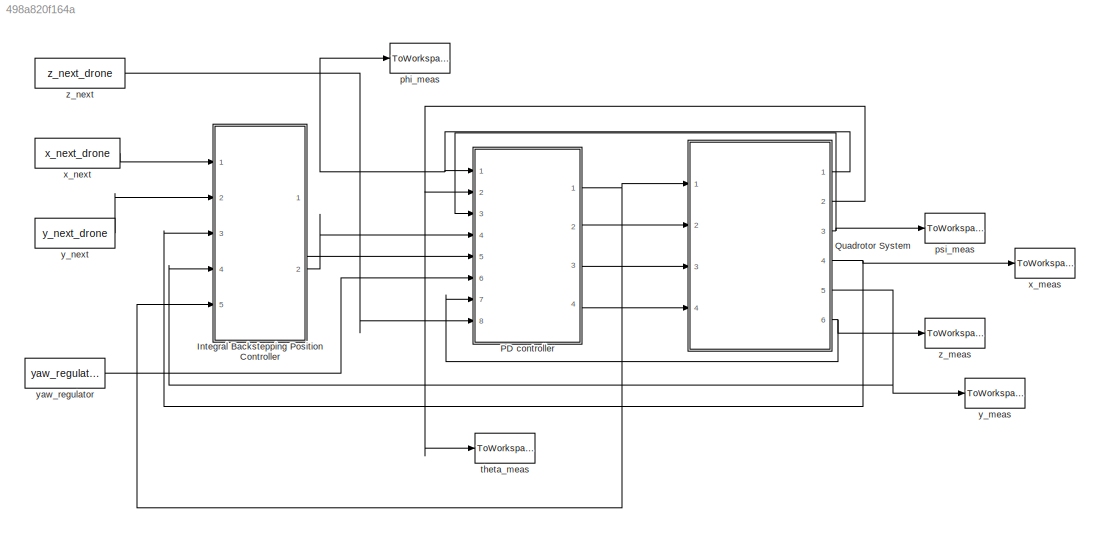
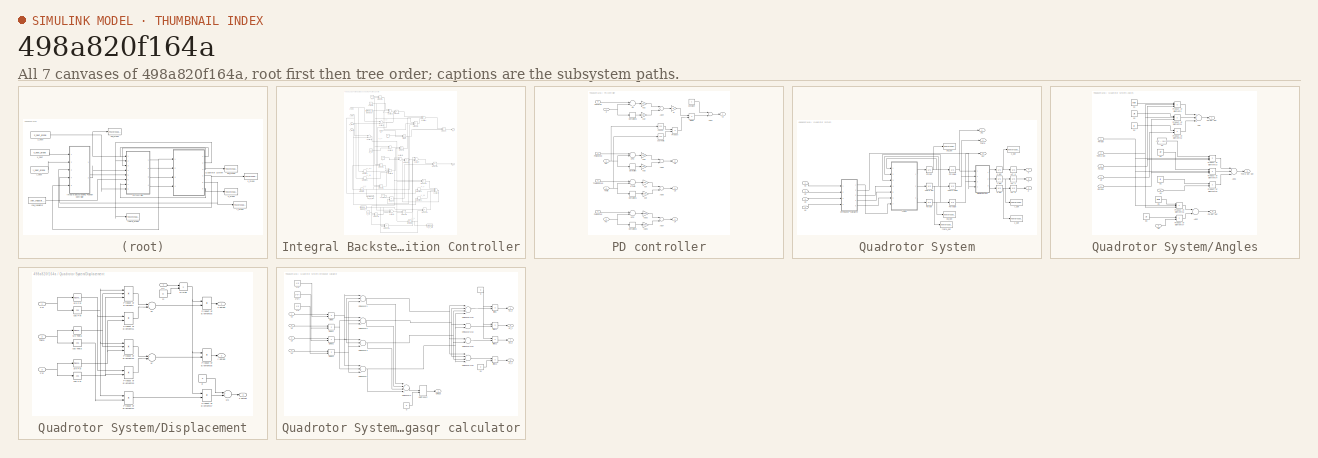
[diagram: thumbnail index - all 7 canvases of the model, root first then tree order]
MODEL slx_498a820f164a
KIND model
CONFIG AbsTol = auto
CONFIG FixedStep = auto
CONFIG MaxStep = auto
CONFIG MinStep = auto
CONFIG RelTol = 1e-3
CONFIG SampleTimeConstraint = Unconstrained
CONFIG Solver = VariableStepAuto
CONFIG SolverMode = Auto
CONFIG SolverName = VariableStepAuto
CONFIG StartTime = start_simulation_drone
CONFIG StopTime = end_simulation_drone
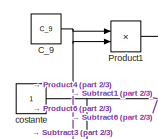
[diagram: Integral Backstepping Position Controller - part 1/3, top left region]
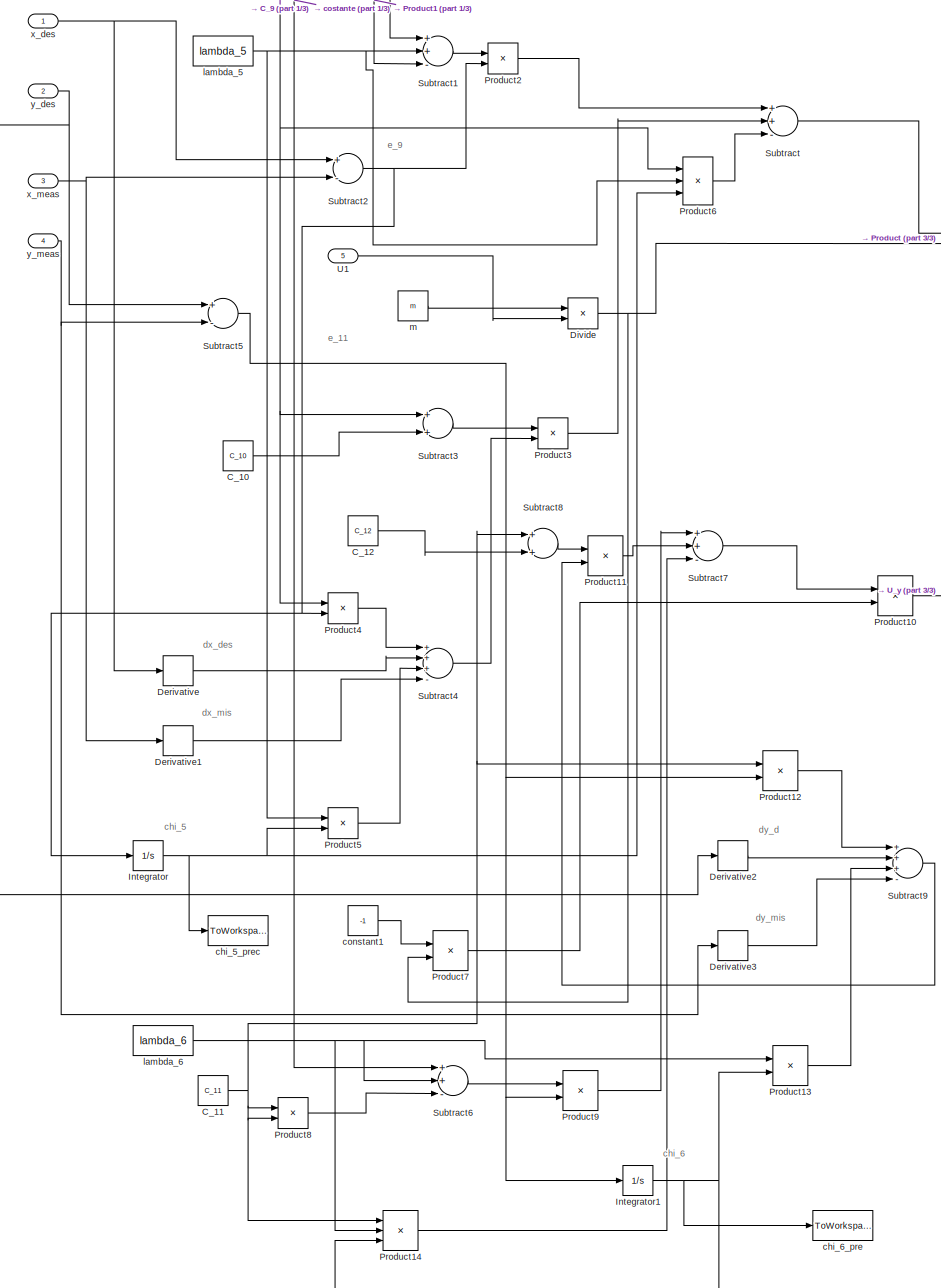
[diagram: Integral Backstepping Position Controller - part 2/3, most of the canvas]
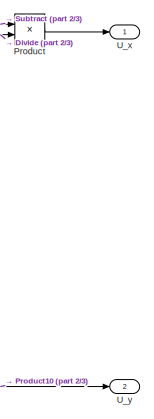
[diagram: Integral Backstepping Position Controller - part 3/3, middle right region]
BLOCK [SubSystem] Integral Backstepping Position Controller
  Ports = [5, 2]
  RequestExecContextInheritance = off
  Variant = off
BLOCK [Constant] Integral Backstepping Position Controller/C_10
  Value = C_10
BLOCK [Constant] Integral Backstepping Position Controller/C_11
  Value = C_11
BLOCK [Constant] Integral Backstepping Position Controller/C_12
  Value = C_12
BLOCK [Constant] Integral Backstepping Position Controller/C_9
  Value = C_9
BLOCK [Derivative] Integral Backstepping Position Controller/Derivative
BLOCK [Derivative] Integral Backstepping Position Controller/Derivative1
BLOCK [Derivative] Integral Backstepping Position Controller/Derivative2
BLOCK [Derivative] Integral Backstepping Position Controller/Derivative3
BLOCK [Product] Integral Backstepping Position Controller/Divide
  InputSameDT = off
  Inputs = */
  OutDataTypeStr = Inherit: Inherit via internal rule
  Ports = [2, 1]
  RndMeth = Floor
  SaturateOnIntegerOverflow = off
BLOCK [Integrator] Integral Backstepping Position Controller/Integrator
  InitialCondition = chi_5_pre
  Ports = [1, 1]
BLOCK [Integrator] Integral Backstepping Position Controller/Integrator1
  InitialCondition = chi_6_pre
  Ports = [1, 1]
BLOCK [Product] Integral Backstepping Position Controller/Product
  InputSameDT = off
  OutDataTypeStr = Inherit: Inherit via internal rule
  Ports = [2, 1]
  RndMeth = Floor
  SaturateOnIntegerOverflow = off
BLOCK [Product] Integral Backstepping Position Controller/Product1
  InputSameDT = off
  OutDataTypeStr = Inherit: Inherit via internal rule
  Ports = [2, 1]
  RndMeth = Floor
  SaturateOnIntegerOverflow = off
BLOCK [Product] Integral Backstepping Position Controller/Product10
  InputSameDT = off
  OutDataTypeStr = Inherit: Inherit via internal rule
  Ports = [2, 1]
  RndMeth = Floor
  SaturateOnIntegerOverflow = off
BLOCK [Product] Integral Backstepping Position Controller/Product11
  InputSameDT = off
  OutDataTypeStr = Inherit: Inherit via internal rule
  Ports = [2, 1]
  RndMeth = Floor
  SaturateOnIntegerOverflow = off
BLOCK [Product] Integral Backstepping Position Controller/Product12
  InputSameDT = off
  OutDataTypeStr = Inherit: Inherit via internal rule
  Ports = [2, 1]
  RndMeth = Floor
  SaturateOnIntegerOverflow = off
BLOCK [Product] Integral Backstepping Position Controller/Product13
  InputSameDT = off
  OutDataTypeStr = Inherit: Inherit via internal rule
  Ports = [2, 1]
  RndMeth = Floor
  SaturateOnIntegerOverflow = off
BLOCK [Product] Integral Backstepping Position Controller/Product14
  InputSameDT = off
  Inputs = 3
  OutDataTypeStr = Inherit: Inherit via internal rule
  Ports = [3, 1]
  RndMeth = Floor
  SaturateOnIntegerOverflow = off
BLOCK [Product] Integral Backstepping Position Controller/Product2
  InputSameDT = off
  OutDataTypeStr = Inherit: Inherit via internal rule
  Ports = [2, 1]
  RndMeth = Floor
  SaturateOnIntegerOverflow = off
BLOCK [Product] Integral Backstepping Position Controller/Product3
  InputSameDT = off
  OutDataTypeStr = Inherit: Inherit via internal rule
  Ports = [2, 1]
  RndMeth = Floor
  SaturateOnIntegerOverflow = off
BLOCK [Product] Integral Backstepping Position Controller/Product4
  InputSameDT = off
  OutDataTypeStr = Inherit: Inherit via internal rule
  Ports = [2, 1]
  RndMeth = Floor
  SaturateOnIntegerOverflow = off
BLOCK [Product] Integral Backstepping Position Controller/Product5
  InputSameDT = off
  OutDataTypeStr = Inherit: Inherit via internal rule
  Ports = [2, 1]
  RndMeth = Floor
  SaturateOnIntegerOverflow = off
BLOCK [Product] Integral Backstepping Position Controller/Product6
  InputSameDT = off
  Inputs = 3
  OutDataTypeStr = Inherit: Inherit via internal rule
  Ports = [3, 1]
  RndMeth = Floor
  SaturateOnIntegerOverflow = off
BLOCK [Product] Integral Backstepping Position Controller/Product7
  InputSameDT = off
  OutDataTypeStr = Inherit: Inherit via internal rule
  Ports = [2, 1]
  RndMeth = Floor
  SaturateOnIntegerOverflow = off
BLOCK [Product] Integral Backstepping Position Controller/Product8
  InputSameDT = off
  OutDataTypeStr = Inherit: Inherit via internal rule
  Ports = [2, 1]
  RndMeth = Floor
  SaturateOnIntegerOverflow = off
BLOCK [Product] Integral Backstepping Position Controller/Product9
  InputSameDT = off
  OutDataTypeStr = Inherit: Inherit via internal rule
  Ports = [2, 1]
  RndMeth = Floor
  SaturateOnIntegerOverflow = off
BLOCK [Sum] Integral Backstepping Position Controller/Subtract
  InputSameDT = off
  Inputs = ++-
  OutDataTypeStr = Inherit: Inherit via internal rule
  Ports = [3, 1]
  SaturateOnIntegerOverflow = off
BLOCK [Sum] Integral Backstepping Position Controller/Subtract1
  InputSameDT = off
  Inputs = ++-
  OutDataTypeStr = Inherit: Inherit via internal rule
  Ports = [3, 1]
  SaturateOnIntegerOverflow = off
BLOCK [Sum] Integral Backstepping Position Controller/Subtract2
  InputSameDT = off
  Inputs = +-
  OutDataTypeStr = Inherit: Inherit via internal rule
  Ports = [2, 1]
  SaturateOnIntegerOverflow = off
BLOCK [Sum] Integral Backstepping Position Controller/Subtract3
  InputSameDT = off
  OutDataTypeStr = Inherit: Inherit via internal rule
  Ports = [2, 1]
  SaturateOnIntegerOverflow = off
BLOCK [Sum] Integral Backstepping Position Controller/Subtract4
  InputSameDT = off
  Inputs = +++-
  OutDataTypeStr = Inherit: Inherit via internal rule
  Ports = [4, 1]
  SaturateOnIntegerOverflow = off
BLOCK [Sum] Integral Backstepping Position Controller/Subtract5
  InputSameDT = off
  Inputs = +-
  OutDataTypeStr = Inherit: Inherit via internal rule
  Ports = [2, 1]
  SaturateOnIntegerOverflow = off
BLOCK [Sum] Integral Backstepping Position Controller/Subtract6
  InputSameDT = off
  Inputs = ++-
  OutDataTypeStr = Inherit: Inherit via internal rule
  Ports = [3, 1]
  SaturateOnIntegerOverflow = off
BLOCK [Sum] Integral Backstepping Position Controller/Subtract7
  InputSameDT = off
  Inputs = ++-
  OutDataTypeStr = Inherit: Inherit via internal rule
  Ports = [3, 1]
  SaturateOnIntegerOverflow = off
BLOCK [Sum] Integral Backstepping Position Controller/Subtract8
  InputSameDT = off
  OutDataTypeStr = Inherit: Inherit via internal rule
  Ports = [2, 1]
  SaturateOnIntegerOverflow = off
BLOCK [Sum] Integral Backstepping Position Controller/Subtract9
  InputSameDT = off
  Inputs = +++-
  OutDataTypeStr = Inherit: Inherit via internal rule
  Ports = [4, 1]
  SaturateOnIntegerOverflow = off
BLOCK [Inport] Integral Backstepping Position Controller/U1
  IconDisplay = Port number
  Port = 5
BLOCK [Outport] Integral Backstepping Position Controller/U_x
  IconDisplay = Port number
BLOCK [Outport] Integral Backstepping Position Controller/U_y
  IconDisplay = Port number
  Port = 2
BLOCK [ToWorkspace] Integral Backstepping Position Controller/chi_5_prec
  FixptAsFi = on
  MaxDataPoints = inf
  Ports = [1]
  SampleTime = -1
  Save2DSignal = 3-D array (concatenate along third dimension)
  VariableName = chi_5
BLOCK [ToWorkspace] Integral Backstepping Position Controller/chi_6_pre
  FixptAsFi = on
  MaxDataPoints = inf
  Ports = [1]
  SampleTime = -1
  Save2DSignal = 3-D array (concatenate along third dimension)
  VariableName = chi_6
BLOCK [Constant] Integral Backstepping Position Controller/constant1
  Value = -1
BLOCK [Constant] Integral Backstepping Position Controller/costante
BLOCK [Constant] Integral Backstepping Position Controller/lambda_5
  Value = lambda_5
BLOCK [Constant] Integral Backstepping Position Controller/lambda_6
  Value = lambda_6
BLOCK [Constant] Integral Backstepping Position Controller/m
  Value = m
BLOCK [Inport] Integral Backstepping Position Controller/x_des
  IconDisplay = Port number
BLOCK [Inport] Integral Backstepping Position Controller/x_meas
  IconDisplay = Port number
  Port = 3
BLOCK [Inport] Integral Backstepping Position Controller/y_des
  IconDisplay = Port number
  Port = 2
BLOCK [Inport] Integral Backstepping Position Controller/y_meas
  IconDisplay = Port number
  Port = 4
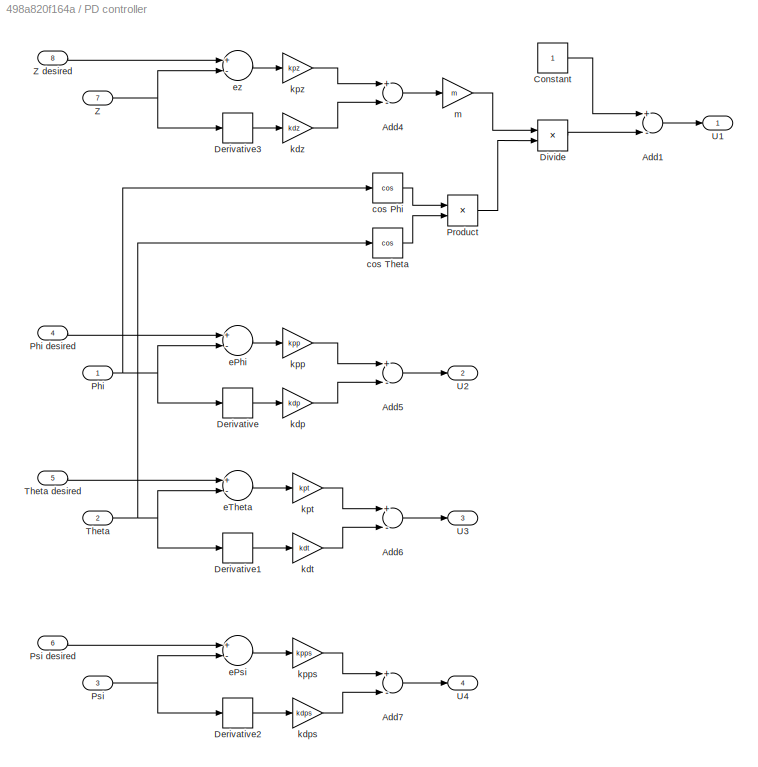
BLOCK [SubSystem] PD controller
  Ports = [8, 4]
  RequestExecContextInheritance = off
  Variant = off
BLOCK [Sum] PD controller/Add1
  InputSameDT = off
  Inputs = +-
  OutDataTypeStr = Inherit: Inherit via internal rule
  Ports = [2, 1]
  SaturateOnIntegerOverflow = off
BLOCK [Sum] PD controller/Add4
  InputSameDT = off
  Inputs = +-
  OutDataTypeStr = Inherit: Inherit via internal rule
  Ports = [2, 1]
  SaturateOnIntegerOverflow = off
BLOCK [Sum] PD controller/Add5
  InputSameDT = off
  Inputs = +-
  OutDataTypeStr = Inherit: Inherit via internal rule
  Ports = [2, 1]
  SaturateOnIntegerOverflow = off
BLOCK [Sum] PD controller/Add6
  InputSameDT = off
  Inputs = +-
  OutDataTypeStr = Inherit: Inherit via internal rule
  Ports = [2, 1]
  SaturateOnIntegerOverflow = off
BLOCK [Sum] PD controller/Add7
  InputSameDT = off
  Inputs = +-
  OutDataTypeStr = Inherit: Inherit via internal rule
  Ports = [2, 1]
  SaturateOnIntegerOverflow = off
BLOCK [Constant] PD controller/Constant
BLOCK [Derivative] PD controller/Derivative
BLOCK [Derivative] PD controller/Derivative1
BLOCK [Derivative] PD controller/Derivative2
BLOCK [Derivative] PD controller/Derivative3
BLOCK [Product] PD controller/Divide
  InputSameDT = off
  Inputs = */
  OutDataTypeStr = Inherit: Inherit via internal rule
  Ports = [2, 1]
  RndMeth = Floor
  SaturateOnIntegerOverflow = off
BLOCK [Inport] PD controller/Phi
  IconDisplay = Port number
BLOCK [Inport] PD controller/Phi desired
  IconDisplay = Port number
  Port = 4
BLOCK [Product] PD controller/Product
  InputSameDT = off
  OutDataTypeStr = Inherit: Inherit via internal rule
  Ports = [2, 1]
  SaturateOnIntegerOverflow = off
BLOCK [Inport] PD controller/Psi
  IconDisplay = Port number
  Port = 3
BLOCK [Inport] PD controller/Psi desired
  IconDisplay = Port number
  Port = 6
BLOCK [Inport] PD controller/Theta
  IconDisplay = Port number
  Port = 2
BLOCK [Inport] PD controller/Theta desired
  IconDisplay = Port number
  Port = 5
BLOCK [Outport] PD controller/U1
  IconDisplay = Port number
BLOCK [Outport] PD controller/U2
  IconDisplay = Port number
  Port = 2
BLOCK [Outport] PD controller/U3
  IconDisplay = Port number
  Port = 3
BLOCK [Outport] PD controller/U4
  IconDisplay = Port number
  Port = 4
BLOCK [Inport] PD controller/Z
  IconDisplay = Port number
  Port = 7
BLOCK [Inport] PD controller/Z desired
  IconDisplay = Port number
  Port = 8
BLOCK [Trigonometry] PD controller/cos Phi
  Operator = cos
  Ports = [1, 1]
BLOCK [Trigonometry] PD controller/cos Theta
  Operator = cos
  Ports = [1, 1]
BLOCK [Sum] PD controller/ePhi
  InputSameDT = off
  Inputs = +-
  OutDataTypeStr = Inherit: Inherit via internal rule
  Ports = [2, 1]
  SaturateOnIntegerOverflow = off
BLOCK [Sum] PD controller/ePsi
  InputSameDT = off
  Inputs = +-
  OutDataTypeStr = Inherit: Inherit via internal rule
  Ports = [2, 1]
  SaturateOnIntegerOverflow = off
BLOCK [Sum] PD controller/eTheta
  InputSameDT = off
  Inputs = +-
  OutDataTypeStr = Inherit: Inherit via internal rule
  Ports = [2, 1]
  SaturateOnIntegerOverflow = off
BLOCK [Sum] PD controller/ez
  InputSameDT = off
  Inputs = +-
  OutDataTypeStr = Inherit: Inherit via internal rule
  Ports = [2, 1]
  SaturateOnIntegerOverflow = off
BLOCK [Gain] PD controller/kdp
  Gain = kdp
  OutDataTypeStr = Inherit: Inherit via internal rule
  ParamDataTypeStr = Inherit: Inherit via internal rule
  SaturateOnIntegerOverflow = off
BLOCK [Gain] PD controller/kdps
  Gain = kdps
  OutDataTypeStr = Inherit: Inherit via internal rule
  ParamDataTypeStr = Inherit: Inherit via internal rule
  SaturateOnIntegerOverflow = off
BLOCK [Gain] PD controller/kdt
  Gain = kdt
  OutDataTypeStr = Inherit: Inherit via internal rule
  ParamDataTypeStr = Inherit: Inherit via internal rule
  SaturateOnIntegerOverflow = off
BLOCK [Gain] PD controller/kdz
  Gain = kdz
  OutDataTypeStr = Inherit: Inherit via internal rule
  ParamDataTypeStr = Inherit: Inherit via internal rule
  SaturateOnIntegerOverflow = off
BLOCK [Gain] PD controller/kpp
  Gain = kpp
  OutDataTypeStr = Inherit: Inherit via internal rule
  ParamDataTypeStr = Inherit: Inherit via internal rule
  SaturateOnIntegerOverflow = off
BLOCK [Gain] PD controller/kpps
  Gain = kpps
  OutDataTypeStr = Inherit: Inherit via internal rule
  ParamDataTypeStr = Inherit: Inherit via internal rule
  SaturateOnIntegerOverflow = off
BLOCK [Gain] PD controller/kpt
  Gain = kpt
  OutDataTypeStr = Inherit: Inherit via internal rule
  ParamDataTypeStr = Inherit: Inherit via internal rule
  SaturateOnIntegerOverflow = off
BLOCK [Gain] PD controller/kpz
  Gain = kpz
  OutDataTypeStr = Inherit: Inherit via internal rule
  ParamDataTypeStr = Inherit: Inherit via internal rule
  SaturateOnIntegerOverflow = off
BLOCK [Gain] PD controller/m
  Gain = m
  OutDataTypeStr = Inherit: Inherit via internal rule
  ParamDataTypeStr = Inherit: Inherit via internal rule
  SaturateOnIntegerOverflow = off
BLOCK [SubSystem] Quadrotor System
  Ports = [4, 6]
  RequestExecContextInheritance = off
  Variant = off
BLOCK [Integrator] Quadrotor System/Act X
  InitialCondition = x_next_pre
  Ports = [1, 1]
BLOCK [Integrator] Quadrotor System/Act Y
  InitialCondition = y_next_pre
  Ports = [1, 1]
BLOCK [Integrator] Quadrotor System/Act Z
  InitialCondition = z_next_pre
  Ports = [1, 1]
BLOCK [SubSystem] Quadrotor System/Angles
  Ports = [7, 3]
  RequestExecContextInheritance = off
  Variant = off
BLOCK [Sum] Quadrotor System/Angles/Add
  InputSameDT = off
  Inputs = +++
  OutDataTypeStr = Inherit: Inherit via internal rule
  Ports = [3, 1]
  SaturateOnIntegerOverflow = off
BLOCK [Sum] Quadrotor System/Angles/Add1
  InputSameDT = off
  Inputs = +-+
  OutDataTypeStr = Inherit: Inherit via internal rule
  Ports = [3, 1]
  SaturateOnIntegerOverflow = off
BLOCK [Sum] Quadrotor System/Angles/Add2
  InputSameDT = off
  OutDataTypeStr = Inherit: Inherit via internal rule
  Ports = [2, 1]
  SaturateOnIntegerOverflow = off
BLOCK [Inport] Quadrotor System/Angles/Omega
  IconDisplay = Port number
  Port = 7
BLOCK [Inport] Quadrotor System/Angles/Phi dot
  IconDisplay = Port number
BLOCK [Outport] Quadrotor System/Angles/Phi dot dot
  IconDisplay = Port number
BLOCK [Product] Quadrotor System/Angles/Product of Elements
  InputSameDT = off
  Inputs = 3
  OutDataTypeStr = Inherit: Inherit via internal rule
  Ports = [3, 1]
  RndMeth = Floor
  SaturateOnIntegerOverflow = off
BLOCK [Product] Quadrotor System/Angles/Product of Elements1
  InputSameDT = off
  Inputs = 3
  OutDataTypeStr = Inherit: Inherit via internal rule
  Ports = [3, 1]
  RndMeth = Floor
  SaturateOnIntegerOverflow = off
BLOCK [Product] Quadrotor System/Angles/Product of Elements2
  InputSameDT = off
  OutDataTypeStr = Inherit: Inherit via internal rule
  Ports = [2, 1]
  RndMeth = Floor
  SaturateOnIntegerOverflow = off
BLOCK [Product] Quadrotor System/Angles/Product of Elements3
  InputSameDT = off
  Inputs = 3
  OutDataTypeStr = Inherit: Inherit via internal rule
  Ports = [3, 1]
  RndMeth = Floor
  SaturateOnIntegerOverflow = off
BLOCK [Product] Quadrotor System/Angles/Product of Elements4
  InputSameDT = off
  Inputs = 3
  OutDataTypeStr = Inherit: Inherit via internal rule
  Ports = [3, 1]
  RndMeth = Floor
  SaturateOnIntegerOverflow = off
BLOCK [Product] Quadrotor System/Angles/Product of Elements5
  InputSameDT = off
  OutDataTypeStr = Inherit: Inherit via internal rule
  Ports = [2, 1]
  RndMeth = Floor
  SaturateOnIntegerOverflow = off
BLOCK [Product] Quadrotor System/Angles/Product of Elements6
  InputSameDT = off
  Inputs = 3
  OutDataTypeStr = Inherit: Inherit via internal rule
  Ports = [3, 1]
  RndMeth = Floor
  SaturateOnIntegerOverflow = off
BLOCK [Product] Quadrotor System/Angles/Product of Elements7
  InputSameDT = off
  OutDataTypeStr = Inherit: Inherit via internal rule
  Ports = [2, 1]
  RndMeth = Floor
  SaturateOnIntegerOverflow = off
BLOCK [Inport] Quadrotor System/Angles/Psi dot
  IconDisplay = Port number
  Port = 3
BLOCK [Outport] Quadrotor System/Angles/Psi dot dot
  IconDisplay = Port number
  Port = 3
BLOCK [Inport] Quadrotor System/Angles/Theta dot
  IconDisplay = Port number
  Port = 2
BLOCK [Outport] Quadrotor System/Angles/Theta dot dot
  IconDisplay = Port number
  Port = 2
BLOCK [Inport] Quadrotor System/Angles/U2
  IconDisplay = Port number
  Port = 4
BLOCK [Inport] Quadrotor System/Angles/U3
  IconDisplay = Port number
  Port = 5
BLOCK [Inport] Quadrotor System/Angles/U4
  IconDisplay = Port number
  Port = 6
BLOCK [Constant] Quadrotor System/Angles/a1
  Value = (Iy - Iz)/Ix
BLOCK [Constant] Quadrotor System/Angles/a2
  Value = Jr/Ix
BLOCK [Constant] Quadrotor System/Angles/a3
  Value = (Iz - Ix)/Iy
BLOCK [Constant] Quadrotor System/Angles/a4
  Value = Jr/Iy
BLOCK [Constant] Quadrotor System/Angles/a5
  Value = (Ix - Iy)/Iz
BLOCK [Constant] Quadrotor System/Angles/b1
  Value = l/Ix
BLOCK [Constant] Quadrotor System/Angles/b2
  Value = l/Iy
BLOCK [Constant] Quadrotor System/Angles/b3
  Value = 1/Iz
BLOCK [SubSystem] Quadrotor System/Displacement
  Ports = [4, 3]
  RequestExecContextInheritance = off
  Variant = off
BLOCK [Product] Quadrotor System/Displacement/Divide
  InputSameDT = off
  Inputs = */
  OutDataTypeStr = Inherit: Inherit via internal rule
  Ports = [2, 1]
  RndMeth = Floor
  SaturateOnIntegerOverflow = off
BLOCK [Inport] Quadrotor System/Displacement/Phi
  IconDisplay = Port number
BLOCK [Product] Quadrotor System/Displacement/Product of Elements
  InputSameDT = off
  Inputs = 3
  OutDataTypeStr = Inherit: Inherit via internal rule
  Ports = [3, 1]
  RndMeth = Floor
  SaturateOnIntegerOverflow = off
BLOCK [Product] Quadrotor System/Displacement/Product of Elements1
  InputSameDT = off
  OutDataTypeStr = Inherit: Inherit via internal rule
  Ports = [2, 1]
  RndMeth = Floor
  SaturateOnIntegerOverflow = off
BLOCK [Product] Quadrotor System/Displacement/Product of Elements2
  InputSameDT = off
  Inputs = 3
  OutDataTypeStr = Inherit: Inherit via internal rule
  Ports = [3, 1]
  RndMeth = Floor
  SaturateOnIntegerOverflow = off
BLOCK [Product] Quadrotor System/Displacement/Product of Elements3
  InputSameDT = off
  OutDataTypeStr = Inherit: Inherit via internal rule
  Ports = [2, 1]
  RndMeth = Floor
  SaturateOnIntegerOverflow = off
BLOCK [Product] Quadrotor System/Displacement/Product of Elements4
  InputSameDT = off
  OutDataTypeStr = Inherit: Inherit via internal rule
  Ports = [2, 1]
  RndMeth = Floor
  SaturateOnIntegerOverflow = off
BLOCK [Product] Quadrotor System/Displacement/Product of Elements5
  InputSameDT = off
  OutDataTypeStr = Inherit: Inherit via internal rule
  Ports = [2, 1]
  RndMeth = Floor
  SaturateOnIntegerOverflow = off
BLOCK [Product] Quadrotor System/Displacement/Product of Elements6
  InputSameDT = off
  OutDataTypeStr = Inherit: Inherit via internal rule
  Ports = [2, 1]
  RndMeth = Floor
  SaturateOnIntegerOverflow = off
BLOCK [Product] Quadrotor System/Displacement/Product of Elements7
  InputSameDT = off
  OutDataTypeStr = Inherit: Inherit via internal rule
  Ports = [2, 1]
  RndMeth = Floor
  SaturateOnIntegerOverflow = off
BLOCK [Inport] Quadrotor System/Displacement/Psi
  IconDisplay = Port number
  Port = 3
BLOCK [Inport] Quadrotor System/Displacement/Theta
  IconDisplay = Port number
  Port = 2
BLOCK [Inport] Quadrotor System/Displacement/U1
  IconDisplay = Port number
  Port = 4
BLOCK [Trigonometry] Quadrotor System/Displacement/cos Phi
  Operator = cos
  Ports = [1, 1]
BLOCK [Trigonometry] Quadrotor System/Displacement/cos Psi
  Operator = cos
  Ports = [1, 1]
BLOCK [Trigonometry] Quadrotor System/Displacement/cos Theta
  Operator = cos
  Ports = [1, 1]
BLOCK [Constant] Quadrotor System/Displacement/g
  Value = g
BLOCK [Constant] Quadrotor System/Displacement/m
  Value = m
BLOCK [Trigonometry] Quadrotor System/Displacement/sin Phi
  Ports = [1, 1]
BLOCK [Trigonometry] Quadrotor System/Displacement/sin Psi
  Ports = [1, 1]
BLOCK [Trigonometry] Quadrotor System/Displacement/sin Theta
  Ports = [1, 1]
BLOCK [Sum] Quadrotor System/Displacement/ux
  InputSameDT = off
  OutDataTypeStr = Inherit: Inherit via internal rule
  Ports = [2, 1]
  SaturateOnIntegerOverflow = off
BLOCK [Sum] Quadrotor System/Displacement/uy
  InputSameDT = off
  Inputs = +-
  OutDataTypeStr = Inherit: Inherit via internal rule
  Ports = [2, 1]
  SaturateOnIntegerOverflow = off
BLOCK [Sum] Quadrotor System/Displacement/uy1
  InputSameDT = off
  Inputs = +-
  OutDataTypeStr = Inherit: Inherit via internal rule
  Ports = [2, 1]
  SaturateOnIntegerOverflow = off
BLOCK [Outport] Quadrotor System/Displacement/x dotdot
  IconDisplay = Port number
BLOCK [Outport] Quadrotor System/Displacement/y dotdot
  IconDisplay = Port number
  Port = 2
BLOCK [Outport] Quadrotor System/Displacement/z dotdot
  IconDisplay = Port number
  Port = 3
BLOCK [Outport] Quadrotor System/Phi
  IconDisplay = Port number
BLOCK [Integrator] Quadrotor System/Phi dot
  InitialCondition = phi_dot_pre
  Ports = [1, 1]
BLOCK [Integrator] Quadrotor System/Phi value
  InitialCondition = roll_regulator_pre
  Ports = [1, 1]
  ZeroCross = off
BLOCK [Outport] Quadrotor System/Psi
  IconDisplay = Port number
  Port = 3
BLOCK [Integrator] Quadrotor System/Psi dot
  InitialCondition = psi_dot_pre
  Ports = [1, 1]
  ZeroCross = off
BLOCK [Integrator] Quadrotor System/Psi value
  InitialCondition = yaw_regulator_pre
  Ports = [1, 1]
  ZeroCross = off
BLOCK [Outport] Quadrotor System/Theta
  IconDisplay = Port number
  Port = 2
BLOCK [Integrator] Quadrotor System/Theta dot
  InitialCondition = theta_dot_pre
  Ports = [1, 1]
  ZeroCross = off
BLOCK [Integrator] Quadrotor System/Theta value
  InitialCondition = pitch_regulator_pre
  Ports = [1, 1]
  ZeroCross = off
BLOCK [Inport] Quadrotor System/U1
  IconDisplay = Port number
BLOCK [Inport] Quadrotor System/U2
  IconDisplay = Port number
  Port = 2
BLOCK [Inport] Quadrotor System/U3
  IconDisplay = Port number
  Port = 3
BLOCK [Inport] Quadrotor System/U4
  IconDisplay = Port number
  Port = 4
BLOCK [Outport] Quadrotor System/X
  IconDisplay = Port number
  Port = 4
BLOCK [Integrator] Quadrotor System/X dot
  InitialCondition = x_dot_pre
  Ports = [1, 1]
BLOCK [Outport] Quadrotor System/Y
  IconDisplay = Port number
  Port = 5
BLOCK [Integrator] Quadrotor System/Y dot
  InitialCondition = y_dot_pre
  Ports = [1, 1]
BLOCK [Outport] Quadrotor System/Z
  IconDisplay = Port number
  Port = 6
BLOCK [Integrator] Quadrotor System/Z dot
  InitialCondition = z_dot_pre
  Ports = [1, 1]
BLOCK [SubSystem] Quadrotor System/omegasqr calculator
  Ports = [4, 5]
  RequestExecContextInheritance = off
  Variant = off
BLOCK [Constant] Quadrotor System/omegasqr calculator/2*b*l
  Value = 2*b*l
BLOCK [Constant] Quadrotor System/omegasqr calculator/4*b
  Value = 4*b
BLOCK [Constant] Quadrotor System/omegasqr calculator/4*d
  Value = 4*d
BLOCK [Product] Quadrotor System/omegasqr calculator/Divide
  InputSameDT = off
  Inputs = */
  OutDataTypeStr = Inherit: Inherit via internal rule
  Ports = [2, 1]
  RndMeth = Floor
  SaturateOnIntegerOverflow = off
BLOCK [Product] Quadrotor System/omegasqr calculator/Divide1
  InputSameDT = off
  Inputs = */
  OutDataTypeStr = Inherit: Inherit via internal rule
  Ports = [2, 1]
  RndMeth = Floor
  SaturateOnIntegerOverflow = off
BLOCK [Product] Quadrotor System/omegasqr calculator/Divide2
  InputSameDT = off
  Inputs = */
  OutDataTypeStr = Inherit: Inherit via internal rule
  Ports = [2, 1]
  RndMeth = Floor
  SaturateOnIntegerOverflow = off
BLOCK [Product] Quadrotor System/omegasqr calculator/Divide3
  InputSameDT = off
  Inputs = */
  OutDataTypeStr = Inherit: Inherit via internal rule
  Ports = [2, 1]
  RndMeth = Floor
  SaturateOnIntegerOverflow = off
BLOCK [DotProduct] Quadrotor System/omegasqr calculator/Dot Product
  OutDataTypeStr = Inherit: Inherit via internal rule
BLOCK [Outport] Quadrotor System/omegasqr calculator/Omega
  IconDisplay = Port number
BLOCK [Sum] Quadrotor System/omegasqr calculator/Omegasqr1
  InputSameDT = off
  Inputs = ++-
  OutDataTypeStr = Inherit: Inherit via internal rule
  Ports = [3, 1]
  SaturateOnIntegerOverflow = off
BLOCK [Sum] Quadrotor System/omegasqr calculator/Omegasqr1cal
  InputSameDT = off
  Inputs = ++++
  OutDataTypeStr = Inherit: Inherit via internal rule
  Ports = [4, 1]
  SaturateOnIntegerOverflow = off
BLOCK [Sum] Quadrotor System/omegasqr calculator/Omegasqr2
  InputSameDT = off
  Inputs = +-+
  OutDataTypeStr = Inherit: Inherit via internal rule
  Ports = [3, 1]
  SaturateOnIntegerOverflow = off
BLOCK [Sum] Quadrotor System/omegasqr calculator/Omegasqr2cal
  InputSameDT = off
  Inputs = -+
  OutDataTypeStr = Inherit: Inherit via internal rule
  Ports = [2, 1]
  SaturateOnIntegerOverflow = off
BLOCK [Sum] Quadrotor System/omegasqr calculator/Omegasqr3
  InputSameDT = off
  Inputs = +--
  OutDataTypeStr = Inherit: Inherit via internal rule
  Ports = [3, 1]
  SaturateOnIntegerOverflow = off
BLOCK [Sum] Quadrotor System/omegasqr calculator/Omegasqr3cal
  InputSameDT = off
  Inputs = +-
  OutDataTypeStr = Inherit: Inherit via internal rule
  Ports = [2, 1]
  SaturateOnIntegerOverflow = off
BLOCK [Sum] Quadrotor System/omegasqr calculator/Omegasqr4
  InputSameDT = off
  Inputs = +++
  OutDataTypeStr = Inherit: Inherit via internal rule
  Ports = [3, 1]
  SaturateOnIntegerOverflow = off
BLOCK [Sum] Quadrotor System/omegasqr calculator/Omegasqr4cal
  InputSameDT = off
  Inputs = -+-+
  OutDataTypeStr = Inherit: Inherit via internal rule
  Ports = [4, 1]
  SaturateOnIntegerOverflow = off
BLOCK [Sum] Quadrotor System/omegasqr calculator/Omegasqr5
  InputSameDT = off
  Inputs = -+-+
  OutDataTypeStr = Inherit: Inherit via internal rule
  Ports = [4, 1]
  SaturateOnIntegerOverflow = off
BLOCK [Inport] Quadrotor System/omegasqr calculator/U1
  IconDisplay = Port number
BLOCK [Outport] Quadrotor System/omegasqr calculator/U1_2
  IconDisplay = Port number
  Port = 2
BLOCK [Inport] Quadrotor System/omegasqr calculator/U2
  IconDisplay = Port number
  Port = 2
BLOCK [Outport] Quadrotor System/omegasqr calculator/U2_2
  IconDisplay = Port number
  Port = 3
BLOCK [Inport] Quadrotor System/omegasqr calculator/U3
  IconDisplay = Port number
  Port = 3
BLOCK [Outport] Quadrotor System/omegasqr calculator/U3_2
  IconDisplay = Port number
  Port = 4
BLOCK [Inport] Quadrotor System/omegasqr calculator/U4
  IconDisplay = Port number
  Port = 4
BLOCK [Outport] Quadrotor System/omegasqr calculator/U4_2
  IconDisplay = Port number
  Port = 5
BLOCK [Constant] Quadrotor System/omegasqr calculator/b
  Value = b
BLOCK [Constant] Quadrotor System/omegasqr calculator/d
  Value = d
BLOCK [Constant] Quadrotor System/omegasqr calculator/d1
  Value = d
BLOCK [Product] Quadrotor System/omegasqr calculator/times
  InputSameDT = off
  Inputs = **
  OutDataTypeStr = Inherit: Inherit via internal rule
  Ports = [2, 1]
  RndMeth = Floor
  SaturateOnIntegerOverflow = off
BLOCK [Product] Quadrotor System/omegasqr calculator/times1
  InputSameDT = off
  Inputs = **
  OutDataTypeStr = Inherit: Inherit via internal rule
  Ports = [2, 1]
  RndMeth = Floor
  SaturateOnIntegerOverflow = off
BLOCK [Product] Quadrotor System/omegasqr calculator/times2
  InputSameDT = off
  Inputs = **
  OutDataTypeStr = Inherit: Inherit via internal rule
  Ports = [2, 1]
  RndMeth = Floor
  SaturateOnIntegerOverflow = off
BLOCK [Product] Quadrotor System/omegasqr calculator/times3
  InputSameDT = off
  Inputs = **
  OutDataTypeStr = Inherit: Inherit via internal rule
  Ports = [2, 1]
  RndMeth = Floor
  SaturateOnIntegerOverflow = off
BLOCK [ToWorkspace] Quadrotor System/phi_dot
  FixptAsFi = on
  MaxDataPoints = inf
  Ports = [1]
  SampleTime = -1
  Save2DSignal = 3-D array (concatenate along third dimension)
  VariableName = phi_dot
BLOCK [ToWorkspace] Quadrotor System/psi_dot
  FixptAsFi = on
  MaxDataPoints = inf
  Ports = [1]
  SampleTime = -1
  Save2DSignal = 3-D array (concatenate along third dimension)
  VariableName = psi_dot
BLOCK [ToWorkspace] Quadrotor System/theta_dot
  FixptAsFi = on
  MaxDataPoints = inf
  Ports = [1]
  SampleTime = -1
  Save2DSignal = 3-D array (concatenate along third dimension)
  VariableName = theta_dot
BLOCK [ToWorkspace] Quadrotor System/x_dot
  FixptAsFi = on
  MaxDataPoints = inf
  Ports = [1]
  SampleTime = -1
  Save2DSignal = 3-D array (concatenate along third dimension)
  VariableName = x_dot
BLOCK [ToWorkspace] Quadrotor System/y_dot
  FixptAsFi = on
  MaxDataPoints = inf
  Ports = [1]
  SampleTime = -1
  Save2DSignal = 3-D array (concatenate along third dimension)
  VariableName = y_dot
BLOCK [ToWorkspace] Quadrotor System/z_dot
  FixptAsFi = on
  MaxDataPoints = inf
  Ports = [1]
  SampleTime = -1
  Save2DSignal = 3-D array (concatenate along third dimension)
  VariableName = z_dot
BLOCK [ToWorkspace] phi_meas
  FixptAsFi = on
  MaxDataPoints = inf
  Ports = [1]
  SampleTime = -1
  Save2DSignal = 3-D array (concatenate along third dimension)
  VariableName = phi_meas
BLOCK [ToWorkspace] psi_meas
  FixptAsFi = on
  MaxDataPoints = inf
  Ports = [1]
  SampleTime = -1
  Save2DSignal = 3-D array (concatenate along third dimension)
  VariableName = psi_meas
BLOCK [ToWorkspace] theta_meas
  FixptAsFi = on
  MaxDataPoints = inf
  Ports = [1]
  SampleTime = -1
  Save2DSignal = 3-D array (concatenate along third dimension)
  VariableName = theta_meas
BLOCK [ToWorkspace] x_meas 
  FixptAsFi = on
  MaxDataPoints = inf
  Ports = [1]
  SampleTime = -1
  Save2DSignal = 3-D array (concatenate along third dimension)
  VariableName = x_meas
BLOCK [Constant] x_next
  Value = x_next_drone
BLOCK [ToWorkspace] y_meas
  FixptAsFi = on
  MaxDataPoints = inf
  Ports = [1]
  SampleTime = -1
  Save2DSignal = 3-D array (concatenate along third dimension)
  VariableName = y_meas
BLOCK [Constant] y_next
  Value = y_next_drone
BLOCK [Constant] yaw_regulator
  Value = yaw_regulator
BLOCK [ToWorkspace] z_meas
  FixptAsFi = on
  MaxDataPoints = inf
  Ports = [1]
  SampleTime = -1
  Save2DSignal = 3-D array (concatenate along third dimension)
  VariableName = z_meas
BLOCK [Constant] z_next
  Value = z_next_drone
ANNOTATION Integral Backstepping Position Controller: chi_5
ANNOTATION Integral Backstepping Position Controller: chi_6
ANNOTATION Integral Backstepping Position Controller: dx_des
ANNOTATION Integral Backstepping Position Controller: dx_mis
ANNOTATION Integral Backstepping Position Controller: dy_d
ANNOTATION Integral Backstepping Position Controller: dy_mis
ANNOTATION Integral Backstepping Position Controller: e_11
ANNOTATION Integral Backstepping Position Controller: e_9
LINE Integral Backstepping Position Controller/C_10:1 -> Integral Backstepping Position Controller/Subtract3:2
NET Integral Backstepping Position Controller/C_11:1 -> Integral Backstepping Position Controller/Product12:1, Integral Backstepping Position Controller/Product14:1, Integral Backstepping Position Controller/Product8:1, Integral Backstepping Position Controller/Product8:2, Integral Backstepping Position Controller/Subtract8:1
LINE Integral Backstepping Position Controller/C_12:1 -> Integral Backstepping Position Controller/Subtract8:2
NET Integral Backstepping Position Controller/C_9:1 -> Integral Backstepping Position Controller/Product1:1, Integral Backstepping Position Controller/Product1:2, Integral Backstepping Position Controller/Product4:1, Integral Backstepping Position Controller/Product6:1, Integral Backstepping Position Controller/Subtract3:1
LINE Integral Backstepping Position Controller/Derivative1:1 -> Integral Backstepping Position Controller/Subtract4:4
LINE Integral Backstepping Position Controller/Derivative2:1 -> Integral Backstepping Position Controller/Subtract9:2
LINE Integral Backstepping Position Controller/Derivative3:1 -> Integral Backstepping Position Controller/Subtract9:4
LINE Integral Backstepping Position Controller/Derivative:1 -> Integral Backstepping Position Controller/Subtract4:2
NET Integral Backstepping Position Controller/Divide:1 -> Integral Backstepping Position Controller/Product7:2, Integral Backstepping Position Controller/Product:2
NET Integral Backstepping Position Controller/Integrator1:1 -> Integral Backstepping Position Controller/Product13:2, Integral Backstepping Position Controller/Product14:3, Integral Backstepping Position Controller/chi_6_pre:1
NET Integral Backstepping Position Controller/Integrator:1 -> Integral Backstepping Position Controller/Product5:2, Integral Backstepping Position Controller/Product6:3, Integral Backstepping Position Controller/chi_5_prec:1
LINE Integral Backstepping Position Controller/Product10:1 -> Integral Backstepping Position Controller/U_y:1
LINE Integral Backstepping Position Controller/Product11:1 -> Integral Backstepping Position Controller/Subtract7:2
LINE Integral Backstepping Position Controller/Product12:1 -> Integral Backstepping Position Controller/Subtract9:1
LINE Integral Backstepping Position Controller/Product13:1 -> Integral Backstepping Position Controller/Subtract9:3
LINE Integral Backstepping Position Controller/Product14:1 -> Integral Backstepping Position Controller/Subtract7:3
LINE Integral Backstepping Position Controller/Product1:1 -> Integral Backstepping Position Controller/Subtract1:3
LINE Integral Backstepping Position Controller/Product2:1 -> Integral Backstepping Position Controller/Subtract:1
LINE Integral Backstepping Position Controller/Product3:1 -> Integral Backstepping Position Controller/Subtract:2
LINE Integral Backstepping Position Controller/Product4:1 -> Integral Backstepping Position Controller/Subtract4:1
LINE Integral Backstepping Position Controller/Product5:1 -> Integral Backstepping Position Controller/Subtract4:3
LINE Integral Backstepping Position Controller/Product6:1 -> Integral Backstepping Position Controller/Subtract:3
LINE Integral Backstepping Position Controller/Product7:1 -> Integral Backstepping Position Controller/Product10:2
LINE Integral Backstepping Position Controller/Product8:1 -> Integral Backstepping Position Controller/Subtract6:3
LINE Integral Backstepping Position Controller/Product9:1 -> Integral Backstepping Position Controller/Subtract7:1
LINE Integral Backstepping Position Controller/Product:1 -> Integral Backstepping Position Controller/U_x:1
LINE Integral Backstepping Position Controller/Subtract1:1 -> Integral Backstepping Position Controller/Product2:1
NET Integral Backstepping Position Controller/Subtract2:1 -> Integral Backstepping Position Controller/Integrator:1, Integral Backstepping Position Controller/Product2:2, Integral Backstepping Position Controller/Product4:2
LINE Integral Backstepping Position Controller/Subtract3:1 -> Integral Backstepping Position Controller/Product3:1
LINE Integral Backstepping Position Controller/Subtract4:1 -> Integral Backstepping Position Controller/Product3:2
NET Integral Backstepping Position Controller/Subtract5:1 -> Integral Backstepping Position Controller/Integrator1:1, Integral Backstepping Position Controller/Product12:2, Integral Backstepping Position Controller/Product9:2
LINE Integral Backstepping Position Controller/Subtract6:1 -> Integral Backstepping Position Controller/Product9:1
LINE Integral Backstepping Position Controller/Subtract7:1 -> Integral Backstepping Position Controller/Product10:1
LINE Integral Backstepping Position Controller/Subtract8:1 -> Integral Backstepping Position Controller/Product11:1
LINE Integral Backstepping Position Controller/Subtract9:1 -> Integral Backstepping Position Controller/Product11:2
LINE Integral Backstepping Position Controller/Subtract:1 -> Integral Backstepping Position Controller/Product:1
LINE Integral Backstepping Position Controller/U1:1 -> Integral Backstepping Position Controller/Divide:2
LINE Integral Backstepping Position Controller/constant1:1 -> Integral Backstepping Position Controller/Product7:1
NET Integral Backstepping Position Controller/costante:1 -> Integral Backstepping Position Controller/Subtract1:1, Integral Backstepping Position Controller/Subtract6:1
NET Integral Backstepping Position Controller/lambda_5:1 -> Integral Backstepping Position Controller/Product5:1, Integral Backstepping Position Controller/Product6:2, Integral Backstepping Position Controller/Subtract1:2
NET Integral Backstepping Position Controller/lambda_6:1 -> Integral Backstepping Position Controller/Product13:1, Integral Backstepping Position Controller/Product14:2, Integral Backstepping Position Controller/Subtract6:2
LINE Integral Backstepping Position Controller/m:1 -> Integral Backstepping Position Controller/Divide:1
NET Integral Backstepping Position Controller/x_des:1 -> Integral Backstepping Position Controller/Derivative:1, Integral Backstepping Position Controller/Subtract2:1
NET Integral Backstepping Position Controller/x_meas:1 -> Integral Backstepping Position Controller/Derivative1:1, Integral Backstepping Position Controller/Subtract2:2
NET Integral Backstepping Position Controller/y_des:1 -> Integral Backstepping Position Controller/Derivative2:1, Integral Backstepping Position Controller/Subtract5:1
NET Integral Backstepping Position Controller/y_meas:1 -> Integral Backstepping Position Controller/Derivative3:1, Integral Backstepping Position Controller/Subtract5:2
LINE Integral Backstepping Position Controller:1 -> PD controller:5
LINE Integral Backstepping Position Controller:2 -> PD controller:4
LINE PD controller/Add1:1 -> PD controller/U1:1
LINE PD controller/Add4:1 -> PD controller/m:1
LINE PD controller/Add5:1 -> PD controller/U2:1
LINE PD controller/Add6:1 -> PD controller/U3:1
LINE PD controller/Add7:1 -> PD controller/U4:1
LINE PD controller/Constant:1 -> PD controller/Add1:1
LINE PD controller/Derivative1:1 -> PD controller/kdt:1
LINE PD controller/Derivative2:1 -> PD controller/kdps:1
LINE PD controller/Derivative3:1 -> PD controller/kdz:1
LINE PD controller/Derivative:1 -> PD controller/kdp:1
LINE PD controller/Divide:1 -> PD controller/Add1:2
LINE PD controller/Phi desired:1 -> PD controller/ePhi:1
NET PD controller/Phi:1 -> PD controller/Derivative:1, PD controller/cos Phi:1, PD controller/ePhi:2
LINE PD controller/Product:1 -> PD controller/Divide:2
LINE PD controller/Psi desired:1 -> PD controller/ePsi:1
NET PD controller/Psi:1 -> PD controller/Derivative2:1, PD controller/ePsi:2
LINE PD controller/Theta desired:1 -> PD controller/eTheta:1
NET PD controller/Theta:1 -> PD controller/Derivative1:1, PD controller/cos Theta:1, PD controller/eTheta:2
LINE PD controller/Z desired:1 -> PD controller/ez:1
NET PD controller/Z:1 -> PD controller/Derivative3:1, PD controller/ez:2
LINE PD controller/cos Phi:1 -> PD controller/Product:1
LINE PD controller/cos Theta:1 -> PD controller/Product:2
LINE PD controller/ePhi:1 -> PD controller/kpp:1
LINE PD controller/ePsi:1 -> PD controller/kpps:1
LINE PD controller/eTheta:1 -> PD controller/kpt:1
LINE PD controller/ez:1 -> PD controller/kpz:1
LINE PD controller/kdp:1 -> PD controller/Add5:2
LINE PD controller/kdps:1 -> PD controller/Add7:2
LINE PD controller/kdt:1 -> PD controller/Add6:2
LINE PD controller/kdz:1 -> PD controller/Add4:2
LINE PD controller/kpp:1 -> PD controller/Add5:1
LINE PD controller/kpps:1 -> PD controller/Add7:1
LINE PD controller/kpt:1 -> PD controller/Add6:1
LINE PD controller/kpz:1 -> PD controller/Add4:1
LINE PD controller/m:1 -> PD controller/Divide:1
NET PD controller:1 -> Integral Backstepping Position Controller:5, Quadrotor System:1
LINE PD controller:2 -> Quadrotor System:2
LINE PD controller:3 -> Quadrotor System:3
LINE PD controller:4 -> Quadrotor System:4
LINE Quadrotor System/Act X:1 -> Quadrotor System/X:1
LINE Quadrotor System/Act Y:1 -> Quadrotor System/Y:1
LINE Quadrotor System/Act Z:1 -> Quadrotor System/Z:1
LINE Quadrotor System/Angles/Add1:1 -> Quadrotor System/Angles/Theta dot dot:1
LINE Quadrotor System/Angles/Add2:1 -> Quadrotor System/Angles/Psi dot dot:1
LINE Quadrotor System/Angles/Add:1 -> Quadrotor System/Angles/Phi dot dot:1
NET Quadrotor System/Angles/Omega:1 -> Quadrotor System/Angles/Product of Elements1:3, Quadrotor System/Angles/Product of Elements4:3
NET Quadrotor System/Angles/Phi dot:1 -> Quadrotor System/Angles/Product of Elements3:2, Quadrotor System/Angles/Product of Elements4:2, Quadrotor System/Angles/Product of Elements6:2
LINE Quadrotor System/Angles/Product of Elements1:1 -> Quadrotor System/Angles/Add:2
LINE Quadrotor System/Angles/Product of Elements2:1 -> Quadrotor System/Angles/Add:3
LINE Quadrotor System/Angles/Product of Elements3:1 -> Quadrotor System/Angles/Add1:1
LINE Quadrotor System/Angles/Product of Elements4:1 -> Quadrotor System/Angles/Add1:2
LINE Quadrotor System/Angles/Product of Elements5:1 -> Quadrotor System/Angles/Add1:3
LINE Quadrotor System/Angles/Product of Elements6:1 -> Quadrotor System/Angles/Add2:1
LINE Quadrotor System/Angles/Product of Elements7:1 -> Quadrotor System/Angles/Add2:2
LINE Quadrotor System/Angles/Product of Elements:1 -> Quadrotor System/Angles/Add:1
NET Quadrotor System/Angles/Psi dot:1 -> Quadrotor System/Angles/Product of Elements3:3, Quadrotor System/Angles/Product of Elements:3
NET Quadrotor System/Angles/Theta dot:1 -> Quadrotor System/Angles/Product of Elements1:2, Quadrotor System/Angles/Product of Elements6:3, Quadrotor System/Angles/Product of Elements:2
LINE Quadrotor System/Angles/U2:1 -> Quadrotor System/Angles/Product of Elements2:2
LINE Quadrotor System/Angles/U3:1 -> Quadrotor System/Angles/Product of Elements5:2
LINE Quadrotor System/Angles/U4:1 -> Quadrotor System/Angles/Product of Elements7:2
LINE Quadrotor System/Angles/a1:1 -> Quadrotor System/Angles/Product of Elements:1
LINE Quadrotor System/Angles/a2:1 -> Quadrotor System/Angles/Product of Elements1:1
LINE Quadrotor System/Angles/a3:1 -> Quadrotor System/Angles/Product of Elements3:1
LINE Quadrotor System/Angles/a4:1 -> Quadrotor System/Angles/Product of Elements4:1
LINE Quadrotor System/Angles/a5:1 -> Quadrotor System/Angles/Product of Elements6:1
LINE Quadrotor System/Angles/b1:1 -> Quadrotor System/Angles/Product of Elements2:1
LINE Quadrotor System/Angles/b2:1 -> Quadrotor System/Angles/Product of Elements5:1
LINE Quadrotor System/Angles/b3:1 -> Quadrotor System/Angles/Product of Elements7:1
LINE Quadrotor System/Angles:1 -> Quadrotor System/Phi dot:1
LINE Quadrotor System/Angles:2 -> Quadrotor System/Theta dot:1
LINE Quadrotor System/Angles:3 -> Quadrotor System/Psi dot:1
NET Quadrotor System/Displacement/Divide:1 -> Quadrotor System/Displacement/Product of Elements5:1, Quadrotor System/Displacement/Product of Elements6:1, Quadrotor System/Displacement/Product of Elements7:1
NET Quadrotor System/Displacement/Phi:1 -> Quadrotor System/Displacement/cos Phi:1, Quadrotor System/Displacement/sin Phi:1
LINE Quadrotor System/Displacement/Product of Elements1:1 -> Quadrotor System/Displacement/ux:2
LINE Quadrotor System/Displacement/Product of Elements2:1 -> Quadrotor System/Displacement/uy:1
LINE Quadrotor System/Displacement/Product of Elements3:1 -> Quadrotor System/Displacement/uy:2
LINE Quadrotor System/Displacement/Product of Elements4:1 -> Quadrotor System/Displacement/Product of Elements7:2
LINE Quadrotor System/Displacement/Product of Elements5:1 -> Quadrotor System/Displacement/x dotdot:1
LINE Quadrotor System/Displacement/Product of Elements6:1 -> Quadrotor System/Displacement/y dotdot:1
LINE Quadrotor System/Displacement/Product of Elements7:1 -> Quadrotor System/Displacement/uy1:2
LINE Quadrotor System/Displacement/Product of Elements:1 -> Quadrotor System/Displacement/ux:1
NET Quadrotor System/Displacement/Psi:1 -> Quadrotor System/Displacement/cos Psi:1, Quadrotor System/Displacement/sin Psi:1
NET Quadrotor System/Displacement/Theta:1 -> Quadrotor System/Displacement/cos Theta:1, Quadrotor System/Displacement/sin Theta:1
LINE Quadrotor System/Displacement/U1:1 -> Quadrotor System/Displacement/Divide:1
NET Quadrotor System/Displacement/cos Phi:1 -> Quadrotor System/Displacement/Product of Elements2:1, Quadrotor System/Displacement/Product of Elements4:1, Quadrotor System/Displacement/Product of Elements:1
NET Quadrotor System/Displacement/cos Psi:1 -> Quadrotor System/Displacement/Product of Elements3:2, Quadrotor System/Displacement/Product of Elements:3
LINE Quadrotor System/Displacement/cos Theta:1 -> Quadrotor System/Displacement/Product of Elements4:2
LINE Quadrotor System/Displacement/g:1 -> Quadrotor System/Displacement/uy1:1
LINE Quadrotor System/Displacement/m:1 -> Quadrotor System/Displacement/Divide:2
NET Quadrotor System/Displacement/sin Phi:1 -> Quadrotor System/Displacement/Product of Elements1:1, Quadrotor System/Displacement/Product of Elements3:1
NET Quadrotor System/Displacement/sin Psi:1 -> Quadrotor System/Displacement/Product of Elements1:2, Quadrotor System/Displacement/Product of Elements2:3
NET Quadrotor System/Displacement/sin Theta:1 -> Quadrotor System/Displacement/Product of Elements2:2, Quadrotor System/Displacement/Product of Elements:2
LINE Quadrotor System/Displacement/ux:1 -> Quadrotor System/Displacement/Product of Elements5:2
LINE Quadrotor System/Displacement/uy1:1 -> Quadrotor System/Displacement/z dotdot:1
LINE Quadrotor System/Displacement/uy:1 -> Quadrotor System/Displacement/Product of Elements6:2
LINE Quadrotor System/Displacement:1 -> Quadrotor System/X dot:1
LINE Quadrotor System/Displacement:2 -> Quadrotor System/Y dot:1
LINE Quadrotor System/Displacement:3 -> Quadrotor System/Z dot:1
NET Quadrotor System/Phi dot:1 -> Quadrotor System/Angles:1, Quadrotor System/Phi value:1, Quadrotor System/phi_dot:1
NET Quadrotor System/Phi value:1 -> Quadrotor System/Displacement:1, Quadrotor System/Phi:1
NET Quadrotor System/Psi dot:1 -> Quadrotor System/Angles:3, Quadrotor System/Psi value:1, Quadrotor System/psi_dot:1
NET Quadrotor System/Psi value:1 -> Quadrotor System/Displacement:3, Quadrotor System/Psi:1
NET Quadrotor System/Theta dot:1 -> Quadrotor System/Angles:2, Quadrotor System/Theta value:1, Quadrotor System/theta_dot:1
NET Quadrotor System/Theta value:1 -> Quadrotor System/Displacement:2, Quadrotor System/Theta:1
LINE Quadrotor System/U1:1 -> Quadrotor System/omegasqr calculator:1
LINE Quadrotor System/U2:1 -> Quadrotor System/omegasqr calculator:2
LINE Quadrotor System/U3:1 -> Quadrotor System/omegasqr calculator:3
LINE Quadrotor System/U4:1 -> Quadrotor System/omegasqr calculator:4
NET Quadrotor System/X dot:1 -> Quadrotor System/Act X:1, Quadrotor System/x_dot:1
NET Quadrotor System/Y dot:1 -> Quadrotor System/Act Y:1, Quadrotor System/y_dot:1
NET Quadrotor System/Z dot:1 -> Quadrotor System/Act Z:1, Quadrotor System/z_dot:1
NET Quadrotor System/omegasqr calculator/2*b*l:1 -> Quadrotor System/omegasqr calculator/Divide1:2, Quadrotor System/omegasqr calculator/Divide2:2
LINE Quadrotor System/omegasqr calculator/4*b:1 -> Quadrotor System/omegasqr calculator/Divide:2
LINE Quadrotor System/omegasqr calculator/4*d:1 -> Quadrotor System/omegasqr calculator/Divide3:2
NET Quadrotor System/omegasqr calculator/Divide1:1 -> Quadrotor System/omegasqr calculator/Omegasqr2:2, Quadrotor System/omegasqr calculator/Omegasqr4:2
NET Quadrotor System/omegasqr calculator/Divide2:1 -> Quadrotor System/omegasqr calculator/Omegasqr1:2, Quadrotor System/omegasqr calculator/Omegasqr3:2
NET Quadrotor System/omegasqr calculator/Divide3:1 -> Quadrotor System/omegasqr calculator/Omegasqr1:3, Quadrotor System/omegasqr calculator/Omegasqr2:3, Quadrotor System/omegasqr calculator/Omegasqr3:3, Quadrotor System/omegasqr calculator/Omegasqr4:3
NET Quadrotor System/omegasqr calculator/Divide:1 -> Quadrotor System/omegasqr calculator/Omegasqr1:1, Quadrotor System/omegasqr calculator/Omegasqr2:1, Quadrotor System/omegasqr calculator/Omegasqr3:1, Quadrotor System/omegasqr calculator/Omegasqr4:1
LINE Quadrotor System/omegasqr calculator/Dot Product:1 -> Quadrotor System/omegasqr calculator/Omega:1
NET Quadrotor System/omegasqr calculator/Omegasqr1:1 -> Quadrotor System/omegasqr calculator/Omegasqr1cal:1, Quadrotor System/omegasqr calculator/Omegasqr3cal:1, Quadrotor System/omegasqr calculator/Omegasqr4cal:1, Quadrotor System/omegasqr calculator/Omegasqr5:1
LINE Quadrotor System/omegasqr calculator/Omegasqr1cal:1 -> Quadrotor System/omegasqr calculator/times:2
NET Quadrotor System/omegasqr calculator/Omegasqr2:1 -> Quadrotor System/omegasqr calculator/Omegasqr1cal:2, Quadrotor System/omegasqr calculator/Omegasqr2cal:1, Quadrotor System/omegasqr calculator/Omegasqr4cal:2, Quadrotor System/omegasqr calculator/Omegasqr5:2
LINE Quadrotor System/omegasqr calculator/Omegasqr2cal:1 -> Quadrotor System/omegasqr calculator/times1:2
NET Quadrotor System/omegasqr calculator/Omegasqr3:1 -> Quadrotor System/omegasqr calculator/Omegasqr1cal:3, Quadrotor System/omegasqr calculator/Omegasqr3cal:2, Quadrotor System/omegasqr calculator/Omegasqr4cal:3, Quadrotor System/omegasqr calculator/Omegasqr5:3
LINE Quadrotor System/omegasqr calculator/Omegasqr3cal:1 -> Quadrotor System/omegasqr calculator/times2:2
NET Quadrotor System/omegasqr calculator/Omegasqr4:1 -> Quadrotor System/omegasqr calculator/Omegasqr1cal:4, Quadrotor System/omegasqr calculator/Omegasqr2cal:2, Quadrotor System/omegasqr calculator/Omegasqr4cal:4, Quadrotor System/omegasqr calculator/Omegasqr5:4
LINE Quadrotor System/omegasqr calculator/Omegasqr4cal:1 -> Quadrotor System/omegasqr calculator/times3:1
LINE Quadrotor System/omegasqr calculator/Omegasqr5:1 -> Quadrotor System/omegasqr calculator/Dot Product:1
LINE Quadrotor System/omegasqr calculator/U1:1 -> Quadrotor System/omegasqr calculator/Divide:1
LINE Quadrotor System/omegasqr calculator/U2:1 -> Quadrotor System/omegasqr calculator/Divide1:1
LINE Quadrotor System/omegasqr calculator/U3:1 -> Quadrotor System/omegasqr calculator/Divide2:1
LINE Quadrotor System/omegasqr calculator/U4:1 -> Quadrotor System/omegasqr calculator/Divide3:1
NET Quadrotor System/omegasqr calculator/b:1 -> Quadrotor System/omegasqr calculator/times1:1, Quadrotor System/omegasqr calculator/times2:1, Quadrotor System/omegasqr calculator/times:1
LINE Quadrotor System/omegasqr calculator/d1:1 -> Quadrotor System/omegasqr calculator/times3:2
LINE Quadrotor System/omegasqr calculator/d:1 -> Quadrotor System/omegasqr calculator/Dot Product:2
LINE Quadrotor System/omegasqr calculator/times1:1 -> Quadrotor System/omegasqr calculator/U2_2:1
LINE Quadrotor System/omegasqr calculator/times2:1 -> Quadrotor System/omegasqr calculator/U3_2:1
LINE Quadrotor System/omegasqr calculator/times3:1 -> Quadrotor System/omegasqr calculator/U4_2:1
LINE Quadrotor System/omegasqr calculator/times:1 -> Quadrotor System/omegasqr calculator/U1_2:1
LINE Quadrotor System/omegasqr calculator:1 -> Quadrotor System/Angles:7
LINE Quadrotor System/omegasqr calculator:2 -> Quadrotor System/Displacement:4
LINE Quadrotor System/omegasqr calculator:3 -> Quadrotor System/Angles:4
LINE Quadrotor System/omegasqr calculator:4 -> Quadrotor System/Angles:5
LINE Quadrotor System/omegasqr calculator:5 -> Quadrotor System/Angles:6
NET Quadrotor System:1 -> PD controller:1, phi_meas:1
NET Quadrotor System:2 -> PD controller:2, theta_meas:1
NET Quadrotor System:3 -> PD controller:3, psi_meas:1
NET Quadrotor System:4 -> Integral Backstepping Position Controller:3, x_meas :1
NET Quadrotor System:5 -> Integral Backstepping Position Controller:4, y_meas:1
NET Quadrotor System:6 -> PD controller:7, z_meas:1
LINE x_next:1 -> Integral Backstepping Position Controller:1
LINE y_next:1 -> Integral Backstepping Position Controller:2
LINE yaw_regulator:1 -> PD controller:6
LINE z_next:1 -> PD controller:8
note: NET lines group one-source signal fan-out (src -> all destinations, sorted); 1:1 wires keep LINE
